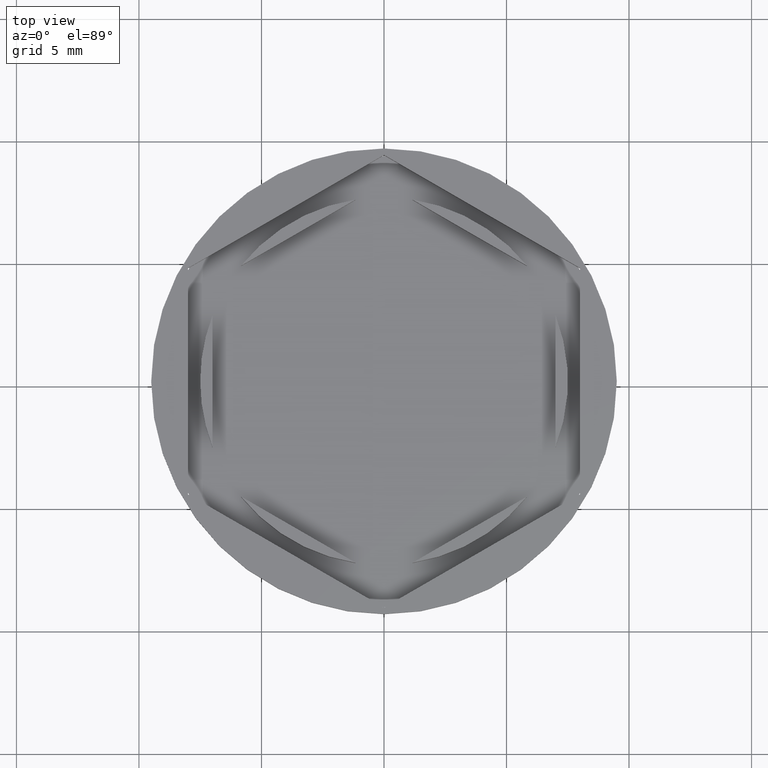
[diagram: clean part render]
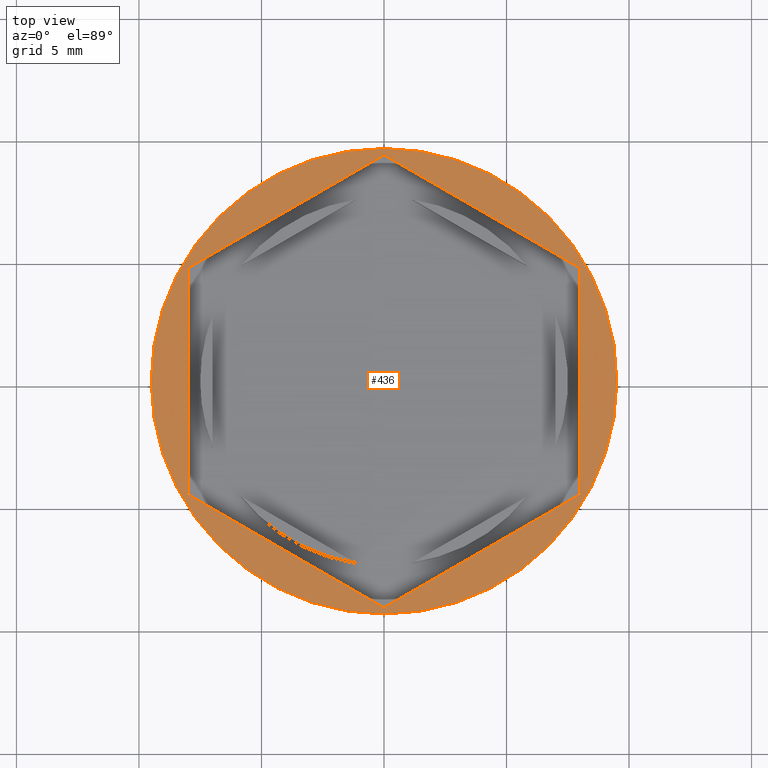
[diagram: same view with one face highlighted and labeled with its STEP entity id]
A machine part, top view. The second image highlights one B-rep face of the part: STEP entity #436.
In plain terms, the highlighted planar face has unit normal (0, -0, 1).
Its self-contained STEP definition (entity closure, byte-faithful):
#32 = PLANE ( 'NONE',  #165 ) ;
#42 = LINE ( 'NONE', #2036, #207 ) ;
#74 = ORIENTED_EDGE ( 'NONE', *, *, #2039, .T. ) ;
#110 = LINE ( 'NONE', #460, #800 ) ;
#116 = VERTEX_POINT ( 'NONE', #211 ) ;
#126 = VECTOR ( 'NONE', #1792, 1000.000000000000000 ) ;
#163 = CARTESIAN_POINT ( 'NONE',  ( 8.000000000000003553, 4.618802153517006737, 0.000000000000000000 ) ) ;
#165 = AXIS2_PLACEMENT_3D ( 'NONE', #846, #1690, #1530 ) ;
#195 = EDGE_CURVE ( 'NONE', #1079, #774, #1916, .T. ) ;
#207 = VECTOR ( 'NONE', #1349, 1000.000000000000114 ) ;
#211 = CARTESIAN_POINT ( 'NONE',  ( 9.500000000000000000, 0.000000000000000000, 0.000000000000000000 ) ) ;
#227 = CARTESIAN_POINT ( 'NONE',  ( -8.000000000000001776, 4.618802153517003184, 0.000000000000000000 ) ) ;
#259 = VERTEX_POINT ( 'NONE', #227 ) ;
#303 = EDGE_LOOP ( 'NONE', ( #74, #2068 ) ) ;
#358 = EDGE_CURVE ( 'NONE', #836, #1912, #1828, .T. ) ;
#363 = ORIENTED_EDGE ( 'NONE', *, *, #1569, .F. ) ;
#421 = DIRECTION ( 'NONE',  ( 0.8660254037844387076, 0.4999999999999998335, 0.000000000000000000 ) ) ;
#424 = LINE ( 'NONE', #581, #561 ) ;
#433 = CARTESIAN_POINT ( 'NONE',  ( 0.000000000000000000, 0.000000000000000000, 0.000000000000000000 ) ) ;
#435 = VERTEX_POINT ( 'NONE', #1519 ) ;
#436 = ADVANCED_FACE ( 'NONE', ( #1706, #1376 ), #32, .T. ) ;
#460 = CARTESIAN_POINT ( 'NONE',  ( -8.000000000000001776, 4.618802153517003184, 0.000000000000000000 ) ) ;
#483 = DIRECTION ( 'NONE',  ( 1.000000000000000000, 0.000000000000000000, 0.000000000000000000 ) ) ;
#561 = VECTOR ( 'NONE', #1281, 1000.000000000000114 ) ;
#581 = CARTESIAN_POINT ( 'NONE',  ( -8.000000000000001776, -4.618802153517008513, 0.000000000000000000 ) ) ;
#745 = CARTESIAN_POINT ( 'NONE',  ( -9.500000000000000000, 1.163414459189985485E-15, 0.000000000000000000 ) ) ;
#756 = CARTESIAN_POINT ( 'NONE',  ( 8.000000000000001776, -4.618802153517007625, 0.000000000000000000 ) ) ;
#767 = AXIS2_PLACEMENT_3D ( 'NONE', #433, #1774, #1586 ) ;
#774 = VERTEX_POINT ( 'NONE', #809 ) ;
#783 = EDGE_CURVE ( 'NONE', #2168, #116, #1848, .T. ) ;
#791 = LINE ( 'NONE', #756, #1685 ) ;
#800 = VECTOR ( 'NONE', #1124, 1000.000000000000000 ) ;
#809 = CARTESIAN_POINT ( 'NONE',  ( 8.000000000000001776, -4.618802153517007625, 0.000000000000000000 ) ) ;
#836 = VERTEX_POINT ( 'NONE', #2045 ) ;
#841 = ORIENTED_EDGE ( 'NONE', *, *, #2052, .F. ) ;
#846 = CARTESIAN_POINT ( 'NONE',  ( 0.000000000000000000, 0.000000000000000000, 0.000000000000000000 ) ) ;
#914 = EDGE_CURVE ( 'NONE', #259, #435, #110, .T. ) ;
#947 = CARTESIAN_POINT ( 'NONE',  ( 8.334195073742550113E-16, -9.237604307034013473, 0.000000000000000000 ) ) ;
#1066 = EDGE_LOOP ( 'NONE', ( #1940, #1724, #1878, #841, #2078, #363 ) ) ;
#1079 = VERTEX_POINT ( 'NONE', #1453 ) ;
#1124 = DIRECTION ( 'NONE',  ( 0.000000000000000000, -1.000000000000000000, 0.000000000000000000 ) ) ;
#1191 = CIRCLE ( 'NONE', #767, 9.500000000000000000 ) ;
#1242 = CARTESIAN_POINT ( 'NONE',  ( 0.000000000000000000, 9.237604307034013473, 0.000000000000000000 ) ) ;
#1248 = VECTOR ( 'NONE', #421, 1000.000000000000114 ) ;
#1281 = DIRECTION ( 'NONE',  ( 0.8660254037844387076, -0.4999999999999997780, 0.000000000000000000 ) ) ;
#1349 = DIRECTION ( 'NONE',  ( -0.8660254037844385966, -0.5000000000000001110, 0.000000000000000000 ) ) ;
#1376 = FACE_OUTER_BOUND ( 'NONE', #303, .T. ) ;
#1453 = CARTESIAN_POINT ( 'NONE',  ( 8.334195073742550113E-16, -9.237604307034013473, 0.000000000000000000 ) ) ;
#1471 = CARTESIAN_POINT ( 'NONE',  ( 0.000000000000000000, 0.000000000000000000, 0.000000000000000000 ) ) ;
#1519 = CARTESIAN_POINT ( 'NONE',  ( -8.000000000000001776, -4.618802153517008513, 0.000000000000000000 ) ) ;
#1530 = DIRECTION ( 'NONE',  ( 1.000000000000000000, 0.000000000000000000, 0.000000000000000000 ) ) ;
#1569 = EDGE_CURVE ( 'NONE', #1912, #259, #42, .T. ) ;
#1586 = DIRECTION ( 'NONE',  ( 1.000000000000000000, 0.000000000000000000, 0.000000000000000000 ) ) ;
#1595 = AXIS2_PLACEMENT_3D ( 'NONE', #1471, #2146, #483 ) ;
#1614 = DIRECTION ( 'NONE',  ( 1.877893248421449036E-16, 1.000000000000000000, 0.000000000000000000 ) ) ;
#1685 = VECTOR ( 'NONE', #1614, 1000.000000000000000 ) ;
#1690 = DIRECTION ( 'NONE',  ( 0.000000000000000000, -0.000000000000000000, 1.000000000000000000 ) ) ;
#1706 = FACE_BOUND ( 'NONE', #1066, .T. ) ;
#1724 = ORIENTED_EDGE ( 'NONE', *, *, #2106, .F. ) ;
#1774 = DIRECTION ( 'NONE',  ( -0.000000000000000000, -0.000000000000000000, 1.000000000000000000 ) ) ;
#1792 = DIRECTION ( 'NONE',  ( -0.8660254037844388186, 0.4999999999999997224, 0.000000000000000000 ) ) ;
#1828 = LINE ( 'NONE', #163, #126 ) ;
#1848 = CIRCLE ( 'NONE', #1595, 9.500000000000000000 ) ;
#1878 = ORIENTED_EDGE ( 'NONE', *, *, #195, .F. ) ;
#1912 = VERTEX_POINT ( 'NONE', #1242 ) ;
#1916 = LINE ( 'NONE', #947, #1248 ) ;
#1940 = ORIENTED_EDGE ( 'NONE', *, *, #358, .F. ) ;
#2036 = CARTESIAN_POINT ( 'NONE',  ( 0.000000000000000000, 9.237604307034011697, 0.000000000000000000 ) ) ;
#2039 = EDGE_CURVE ( 'NONE', #116, #2168, #1191, .T. ) ;
#2045 = CARTESIAN_POINT ( 'NONE',  ( 8.000000000000003553, 4.618802153517006737, 0.000000000000000000 ) ) ;
#2052 = EDGE_CURVE ( 'NONE', #435, #1079, #424, .T. ) ;
#2068 = ORIENTED_EDGE ( 'NONE', *, *, #783, .T. ) ;
#2078 = ORIENTED_EDGE ( 'NONE', *, *, #914, .F. ) ;
#2106 = EDGE_CURVE ( 'NONE', #774, #836, #791, .T. ) ;
#2146 = DIRECTION ( 'NONE',  ( -0.000000000000000000, -0.000000000000000000, 1.000000000000000000 ) ) ;
#2168 = VERTEX_POINT ( 'NONE', #745 ) ;